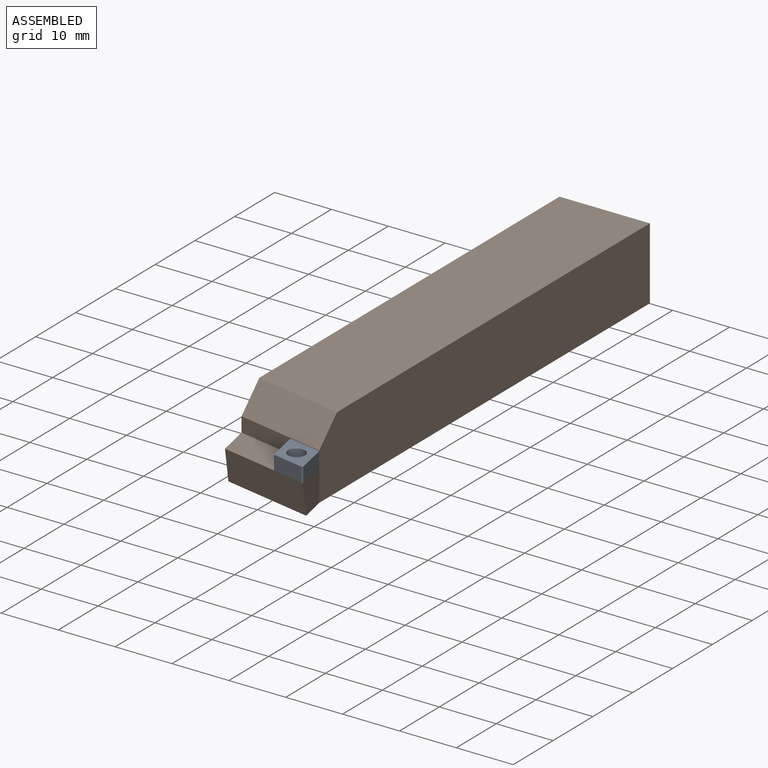
[diagram: assembled view]
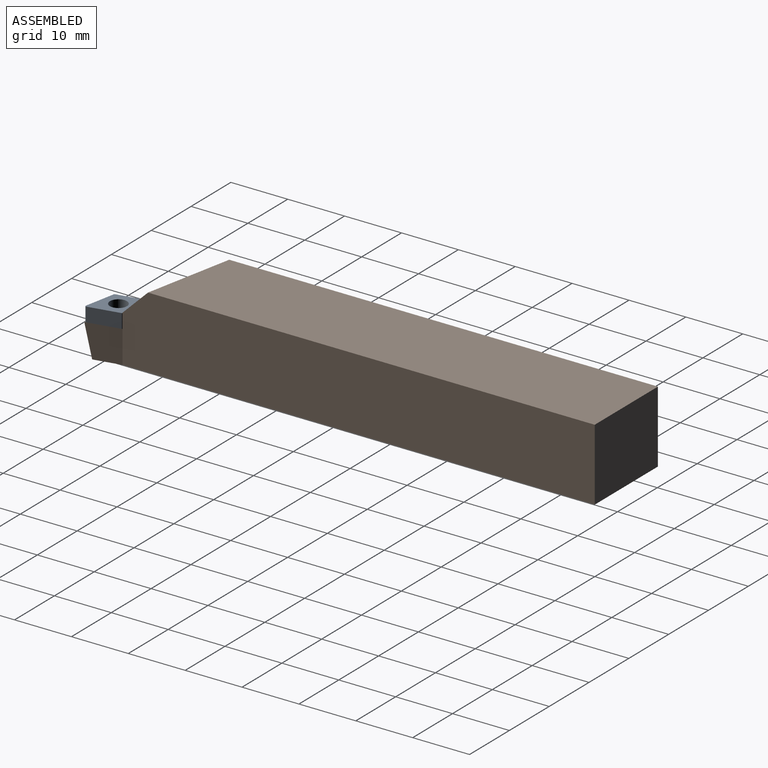
[diagram: assembled view, second angle]
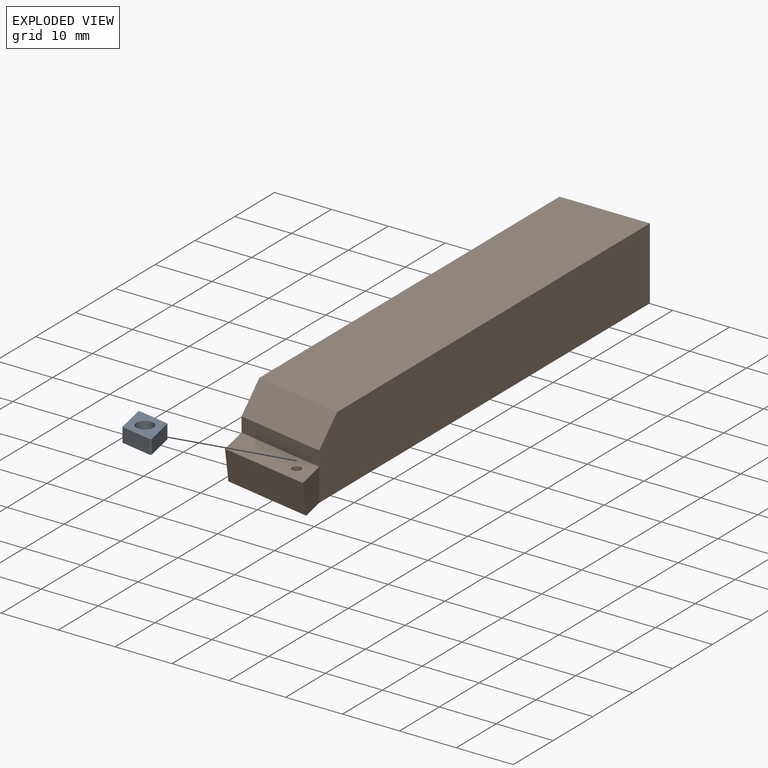
[diagram: exploded view]
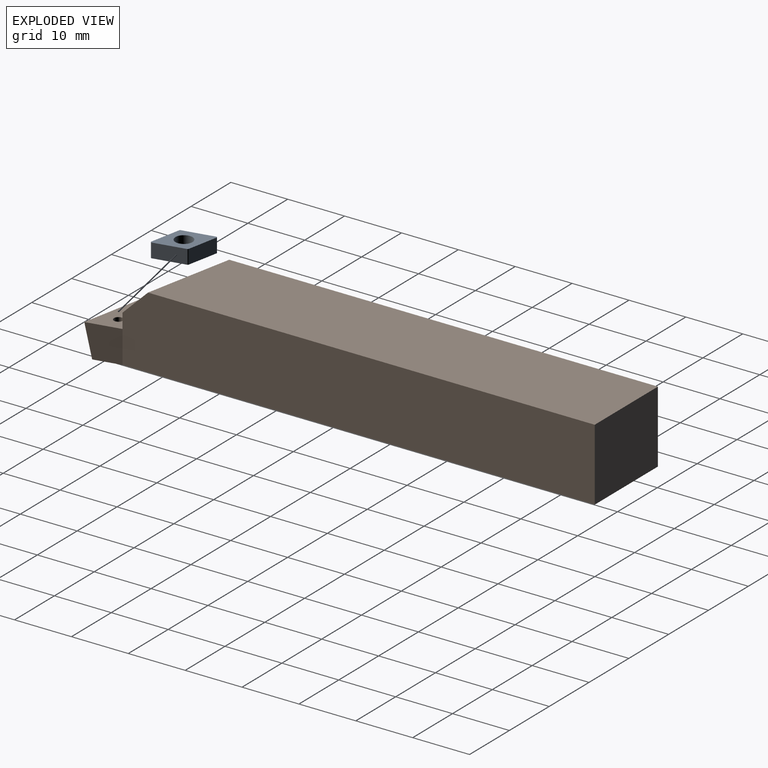
[diagram: exploded view, second angle]
ASSEMBLY  parts=2 mates=3
PART A: 11 faces, bbox 6.6x9.7x2.5 mm
  f0: plane 4.63x3.07mm, normal (-0.83,0.55,0), area 13.9mm2, adj f5,f6,f7,f10
  f1: plane 4.63x3.07mm, normal (-0.83,-0.55,0), area 13.9mm2, adj f5,f6,f7,f8
  f2: plane 4.63x3.07mm, normal (0.83,-0.55,0), area 13.9mm2, adj f5,f6,f8,f9
  f3: plane 4.63x3.07mm, normal (0.83,0.55,0), area 13.9mm2, adj f5,f6,f9,f10
  f4: cylinder r=1.5mm len=3mm, axis (0,0,-1), area 23.6mm2, adj f5,f6
  f5: plane 9.67x6.55mm, normal (0,0,1), area 26mm2, adj f0,f1,f2,f3,f4,f7,f8,f9
  f6: plane 9.67x6.55mm, normal (0,0,-1), area 26mm2, adj f0,f1,f2,f3,f4,f7,f8,f9
  f7: cylinder r=0.2mm len=2.5mm, axis (0,0,-1), area 0.6mm2, adj f0,f1,f5,f6
  f8: cylinder r=0.2mm len=2.5mm, axis (0,0,-1), area 1mm2, adj f1,f2,f5,f6
  f9: cylinder r=0.2mm len=2.5mm, axis (0,0,-1), area 0.6mm2, adj f2,f3,f5,f6
  f10: cylinder r=0.2mm len=2.5mm, axis (0,0,-1), area 1mm2, adj f0,f3,f5,f6
PART B: 12 faces, bbox 17.1x88.9x12.7 mm
  f0: plane 5.88x5.72mm, normal (-0.98,-0.2,0), area 30.8mm2, adj f3,f7,f9,f10
  f1: plane 5.88x5.72mm, normal (0.98,0.2,0), area 30.8mm2, adj f4,f7,f9,f10
  f2: cylinder r=0.79mm len=5.72mm, axis (0,0,-1), area 28.5mm2, adj f7,f9
  f3: plane 79.87x12.7mm, normal (-1,0,0), area 1004.4mm2, adj f0,f5,f6,f7,f8,f11
  f4: plane 83.02x12.7mm, normal (1,0,0), area 1044.6mm2, adj f1,f5,f6,f7,f8,f11
  f5: plane 15.88x12.7mm, normal (0,1,0), area 201.6mm2, adj f3,f4,f6,f7
  f6: plane 78.54x15.88mm, normal (0,0,1), area 1221.8mm2, adj f3,f4,f5,f11
  f7: plane 87.69x16.84mm, normal (0,0,-1), area 1362mm2, adj f0,f1,f2,f3,f4,f5,f10
  f8: plane 15.88x3.16mm, normal (-0.2,-0.98,0), area 41.9mm2, adj f3,f4,f9,f11
  f9: plane 17.09x9.03mm, normal (0,0,1), area 87.5mm2, adj f0,f1,f2,f8,f10
  f10: plane 16.12x5.72mm, normal (-0.19,-0.96,-0.2), area 94.3mm2, adj f0,f1,f7,f9
  f11: plane 15.88x7.64mm, normal (-0.14,-0.69,0.71), area 100.6mm2, adj f3,f4,f6,f8
PLACE A rot(axis=(0,0,1),45.2deg) t=(-4.67,-87.73,5.72)mm
PLACE B t=(-15.88,-88.9,0)mm
MATE planar B.f9 <-> A.f4  axis (0,0,1) through (-7.45,-84.36,5.72)mm
MATE planar B.f8 <-> A.f3  axis (-0.2,-0.98,0) through (-7.94,-81.44,7.01)mm
MATE planar B.f1 <-> A.f2  axis (0.98,0.2,0) through (0.61,-85.96,5.72)mm
